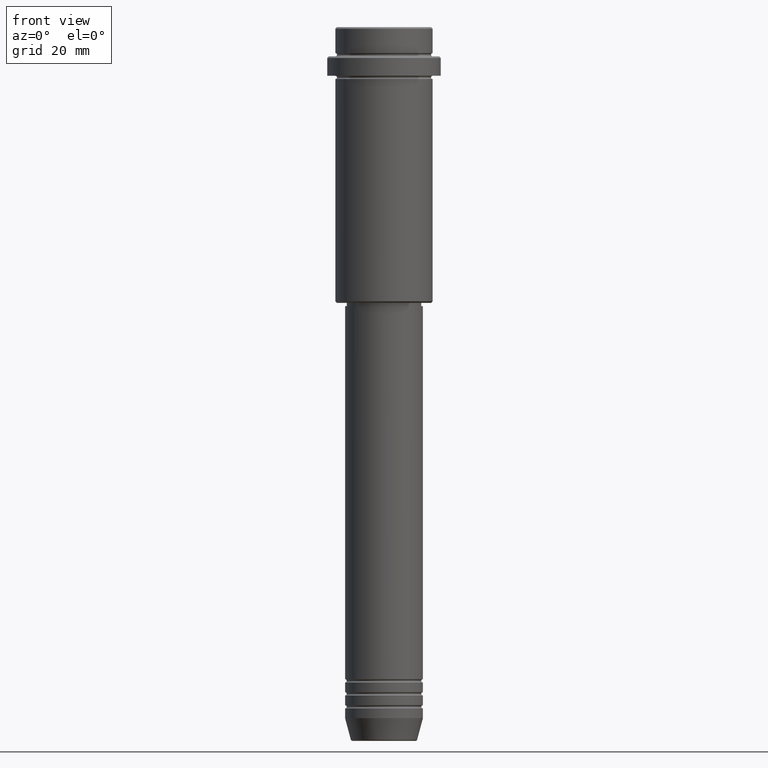
[diagram: clean part render]
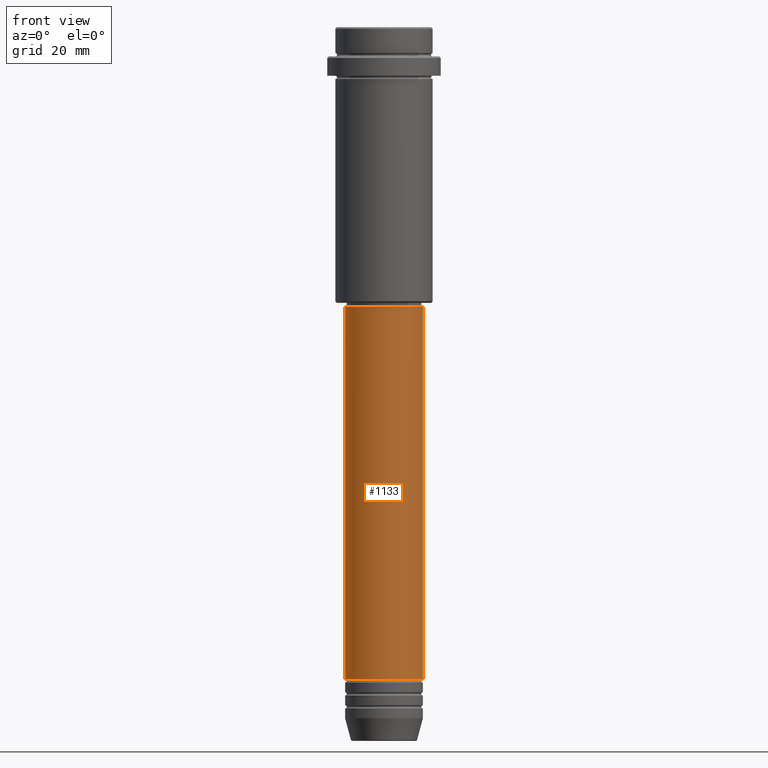
[diagram: same view with one face highlighted and labeled with its STEP entity id]
A machine part, front view. The second image highlights one B-rep face of the part: STEP entity #1133.
In plain terms, the highlighted cylindrical surface (partial cylindrical patch) has radius 12 mm, axis along (-0, -0, 1).
Its self-contained STEP definition (entity closure, byte-faithful):
#64 = CARTESIAN_POINT ( 'NONE',  ( 0.000000000000000000, 0.000000000000000000, -200.9999999999999147 ) ) ;
#66 = CARTESIAN_POINT ( 'NONE',  ( -12.00000000000000000, 1.469576158976823947E-15, 0.000000000000000000 ) ) ;
#145 = VERTEX_POINT ( 'NONE', #497 ) ;
#199 = DIRECTION ( 'NONE',  ( -0.000000000000000000, -0.000000000000000000, 1.000000000000000000 ) ) ;
#205 = EDGE_CURVE ( 'NONE', #320, #145, #401, .T. ) ;
#291 = DIRECTION ( 'NONE',  ( -0.000000000000000000, -0.000000000000000000, 1.000000000000000000 ) ) ;
#316 = CARTESIAN_POINT ( 'NONE',  ( 0.000000000000000000, 0.000000000000000000, 0.000000000000000000 ) ) ;
#320 = VERTEX_POINT ( 'NONE', #645 ) ;
#329 = AXIS2_PLACEMENT_3D ( 'NONE', #1354, #1371, #1274 ) ;
#336 = EDGE_LOOP ( 'NONE', ( #1142, #1083, #1302, #1290 ) ) ;
#354 = CIRCLE ( 'NONE', #329, 11.99999999999999822 ) ;
#401 = LINE ( 'NONE', #66, #899 ) ;
#429 = CYLINDRICAL_SURFACE ( 'NONE', #1020, 12.00000000000000000 ) ;
#495 = CARTESIAN_POINT ( 'NONE',  ( 12.00000000000000000, 0.000000000000000000, -200.9999999999999147 ) ) ;
#497 = CARTESIAN_POINT ( 'NONE',  ( -11.99999999999999822, 1.469576158976823750E-15, -86.00000000000001421 ) ) ;
#500 = DIRECTION ( 'NONE',  ( 1.000000000000000000, 0.000000000000000000, 0.000000000000000000 ) ) ;
#528 = AXIS2_PLACEMENT_3D ( 'NONE', #64, #958, #500 ) ;
#606 = EDGE_CURVE ( 'NONE', #320, #988, #666, .T. ) ;
#645 = CARTESIAN_POINT ( 'NONE',  ( -12.00000000000000000, 1.469576158976823947E-15, -200.9999999999999147 ) ) ;
#666 = CIRCLE ( 'NONE', #528, 12.00000000000000000 ) ;
#703 = VERTEX_POINT ( 'NONE', #1270 ) ;
#768 = DIRECTION ( 'NONE',  ( -0.000000000000000000, -0.000000000000000000, 1.000000000000000000 ) ) ;
#852 = FACE_OUTER_BOUND ( 'NONE', #336, .T. ) ;
#899 = VECTOR ( 'NONE', #291, 1000.000000000000000 ) ;
#958 = DIRECTION ( 'NONE',  ( -0.000000000000000000, -0.000000000000000000, 1.000000000000000000 ) ) ;
#986 = LINE ( 'NONE', #1417, #1125 ) ;
#988 = VERTEX_POINT ( 'NONE', #495 ) ;
#1013 = EDGE_CURVE ( 'NONE', #145, #703, #354, .T. ) ;
#1020 = AXIS2_PLACEMENT_3D ( 'NONE', #316, #199, #1295 ) ;
#1083 = ORIENTED_EDGE ( 'NONE', *, *, #606, .T. ) ;
#1125 = VECTOR ( 'NONE', #768, 1000.000000000000000 ) ;
#1133 = ADVANCED_FACE ( 'NONE', ( #852 ), #429, .T. ) ;
#1142 = ORIENTED_EDGE ( 'NONE', *, *, #205, .F. ) ;
#1266 = EDGE_CURVE ( 'NONE', #988, #703, #986, .T. ) ;
#1270 = CARTESIAN_POINT ( 'NONE',  ( 11.99999999999999822, 0.000000000000000000, -86.00000000000001421 ) ) ;
#1274 = DIRECTION ( 'NONE',  ( 1.000000000000000000, 0.000000000000000000, 0.000000000000000000 ) ) ;
#1290 = ORIENTED_EDGE ( 'NONE', *, *, #1013, .F. ) ;
#1295 = DIRECTION ( 'NONE',  ( 1.000000000000000000, 0.000000000000000000, 0.000000000000000000 ) ) ;
#1302 = ORIENTED_EDGE ( 'NONE', *, *, #1266, .T. ) ;
#1354 = CARTESIAN_POINT ( 'NONE',  ( 0.000000000000000000, 0.000000000000000000, -86.00000000000001421 ) ) ;
#1371 = DIRECTION ( 'NONE',  ( -0.000000000000000000, -0.000000000000000000, 1.000000000000000000 ) ) ;
#1417 = CARTESIAN_POINT ( 'NONE',  ( 12.00000000000000000, 0.000000000000000000, 0.000000000000000000 ) ) ;